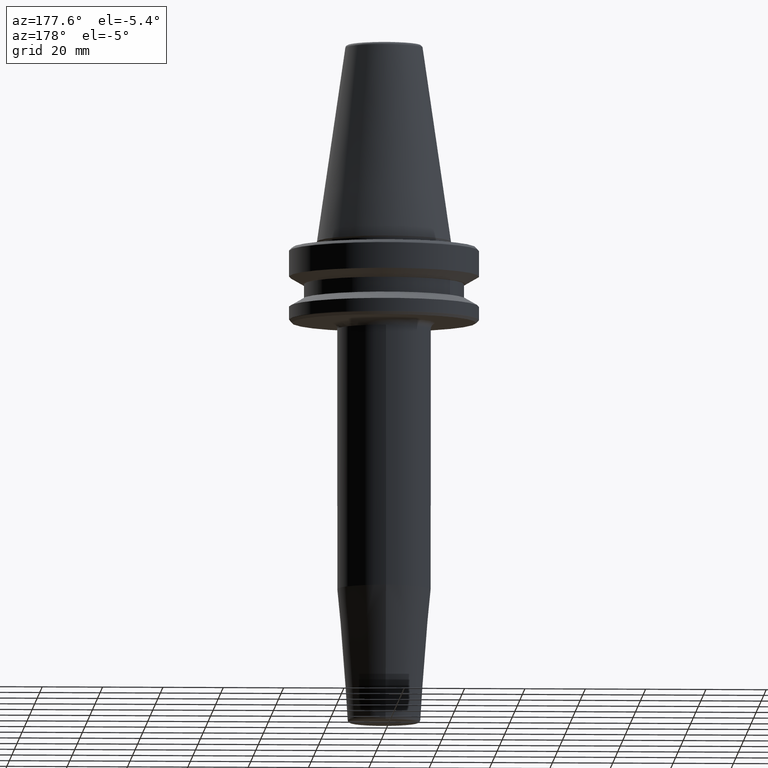
[diagram: clean part render]
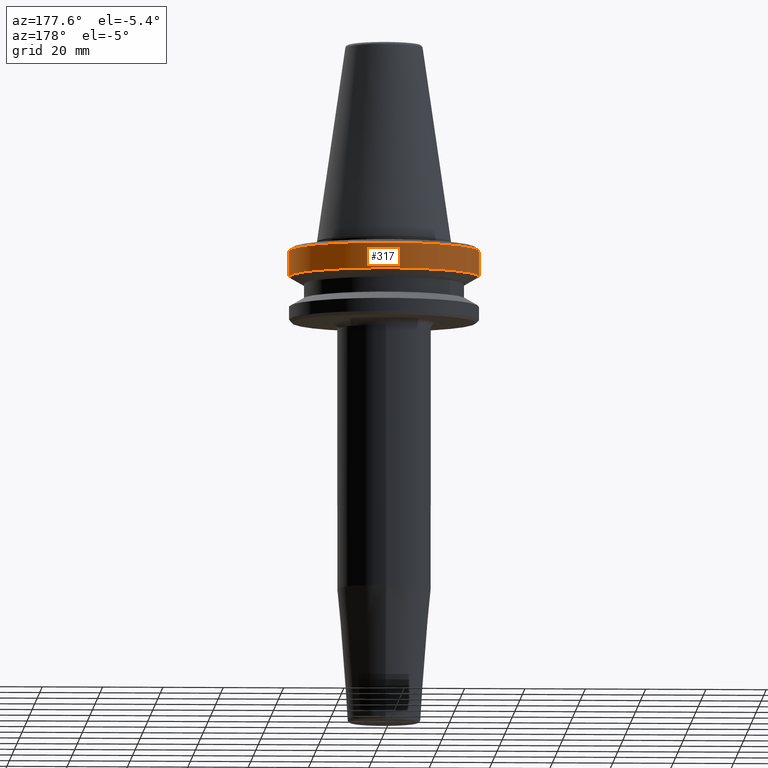
[diagram: same view with one face highlighted and labeled with its STEP entity id]
A machine part, auxiliary view. The second image highlights one B-rep face of the part: STEP entity #317.
In plain terms, the highlighted cylindrical surface (partial cylindrical patch) has radius 31.5 mm, axis along (-0, -0, 1).
Its self-contained STEP definition (entity closure, byte-faithful):
#15 = DIRECTION ( 'NONE',  ( -0.0000000000000000000, -0.0000000000000000000, 1.000000000000000000 ) ) ;
#29 = CYLINDRICAL_SURFACE ( 'NONE', #760, 31.50000000000000000 ) ;
#36 = EDGE_CURVE ( 'NONE', #1040, #1211, #375, .T. ) ;
#58 = VECTOR ( 'NONE', #1015, 1000.000000000000000 ) ;
#123 = DIRECTION ( 'NONE',  ( 1.000000000000000000, 0.0000000000000000000, 0.0000000000000000000 ) ) ;
#182 = VECTOR ( 'NONE', #1115, 1000.000000000000000 ) ;
#222 = CARTESIAN_POINT ( 'NONE',  ( 0.0000000000000000000, 0.0000000000000000000, -3.165685424949243700 ) ) ;
#232 = LINE ( 'NONE', #880, #182 ) ;
#292 = EDGE_CURVE ( 'NONE', #1211, #381, #570, .T. ) ;
#314 = DIRECTION ( 'NONE',  ( 1.000000000000000000, 0.0000000000000000000, 0.0000000000000000000 ) ) ;
#317 = ADVANCED_FACE ( 'NONE', ( #815 ), #29, .T. ) ;
#375 = CIRCLE ( 'NONE', #1141, 31.50000000000000000 ) ;
#381 = VERTEX_POINT ( 'NONE', #385 ) ;
#385 = CARTESIAN_POINT ( 'NONE',  ( -31.49999999999999300, 3.857637417314161900E-015, -3.165685424949243700 ) ) ;
#388 = CARTESIAN_POINT ( 'NONE',  ( -31.50000000000000000, 3.857637417314162700E-015, 69.75694866325665100 ) ) ;
#423 = EDGE_CURVE ( 'NONE', #1040, #1099, #232, .T. ) ;
#470 = CARTESIAN_POINT ( 'NONE',  ( 31.50000000000000000, 0.0000000000000000000, -11.59985799368323700 ) ) ;
#501 = CARTESIAN_POINT ( 'NONE',  ( -31.50000000000000000, 3.857637417314162700E-015, -11.59985799368323700 ) ) ;
#533 = ORIENTED_EDGE ( 'NONE', *, *, #292, .T. ) ;
#564 = AXIS2_PLACEMENT_3D ( 'NONE', #222, #905, #314 ) ;
#570 = LINE ( 'NONE', #388, #58 ) ;
#667 = EDGE_CURVE ( 'NONE', #1099, #381, #982, .T. ) ;
#728 = DIRECTION ( 'NONE',  ( 1.000000000000000000, 0.0000000000000000000, 0.0000000000000000000 ) ) ;
#737 = CARTESIAN_POINT ( 'NONE',  ( 0.0000000000000000000, 0.0000000000000000000, -11.59985799368323700 ) ) ;
#760 = AXIS2_PLACEMENT_3D ( 'NONE', #1185, #844, #728 ) ;
#779 = CARTESIAN_POINT ( 'NONE',  ( 31.49999999999999300, 0.0000000000000000000, -3.165685424949243700 ) ) ;
#815 = FACE_OUTER_BOUND ( 'NONE', #1133, .T. ) ;
#844 = DIRECTION ( 'NONE',  ( -0.0000000000000000000, -0.0000000000000000000, 1.000000000000000000 ) ) ;
#880 = CARTESIAN_POINT ( 'NONE',  ( 31.50000000000000000, 0.0000000000000000000, 69.75694866325665100 ) ) ;
#905 = DIRECTION ( 'NONE',  ( -0.0000000000000000000, -0.0000000000000000000, 1.000000000000000000 ) ) ;
#946 = ORIENTED_EDGE ( 'NONE', *, *, #423, .F. ) ;
#982 = CIRCLE ( 'NONE', #564, 31.49999999999999300 ) ;
#1015 = DIRECTION ( 'NONE',  ( -0.0000000000000000000, -0.0000000000000000000, 1.000000000000000000 ) ) ;
#1040 = VERTEX_POINT ( 'NONE', #470 ) ;
#1099 = VERTEX_POINT ( 'NONE', #779 ) ;
#1115 = DIRECTION ( 'NONE',  ( -0.0000000000000000000, -0.0000000000000000000, 1.000000000000000000 ) ) ;
#1133 = EDGE_LOOP ( 'NONE', ( #1142, #533, #1155, #946 ) ) ;
#1141 = AXIS2_PLACEMENT_3D ( 'NONE', #737, #15, #123 ) ;
#1142 = ORIENTED_EDGE ( 'NONE', *, *, #36, .T. ) ;
#1155 = ORIENTED_EDGE ( 'NONE', *, *, #667, .F. ) ;
#1185 = CARTESIAN_POINT ( 'NONE',  ( 0.0000000000000000000, 0.0000000000000000000, 69.75694866325665100 ) ) ;
#1211 = VERTEX_POINT ( 'NONE', #501 ) ;